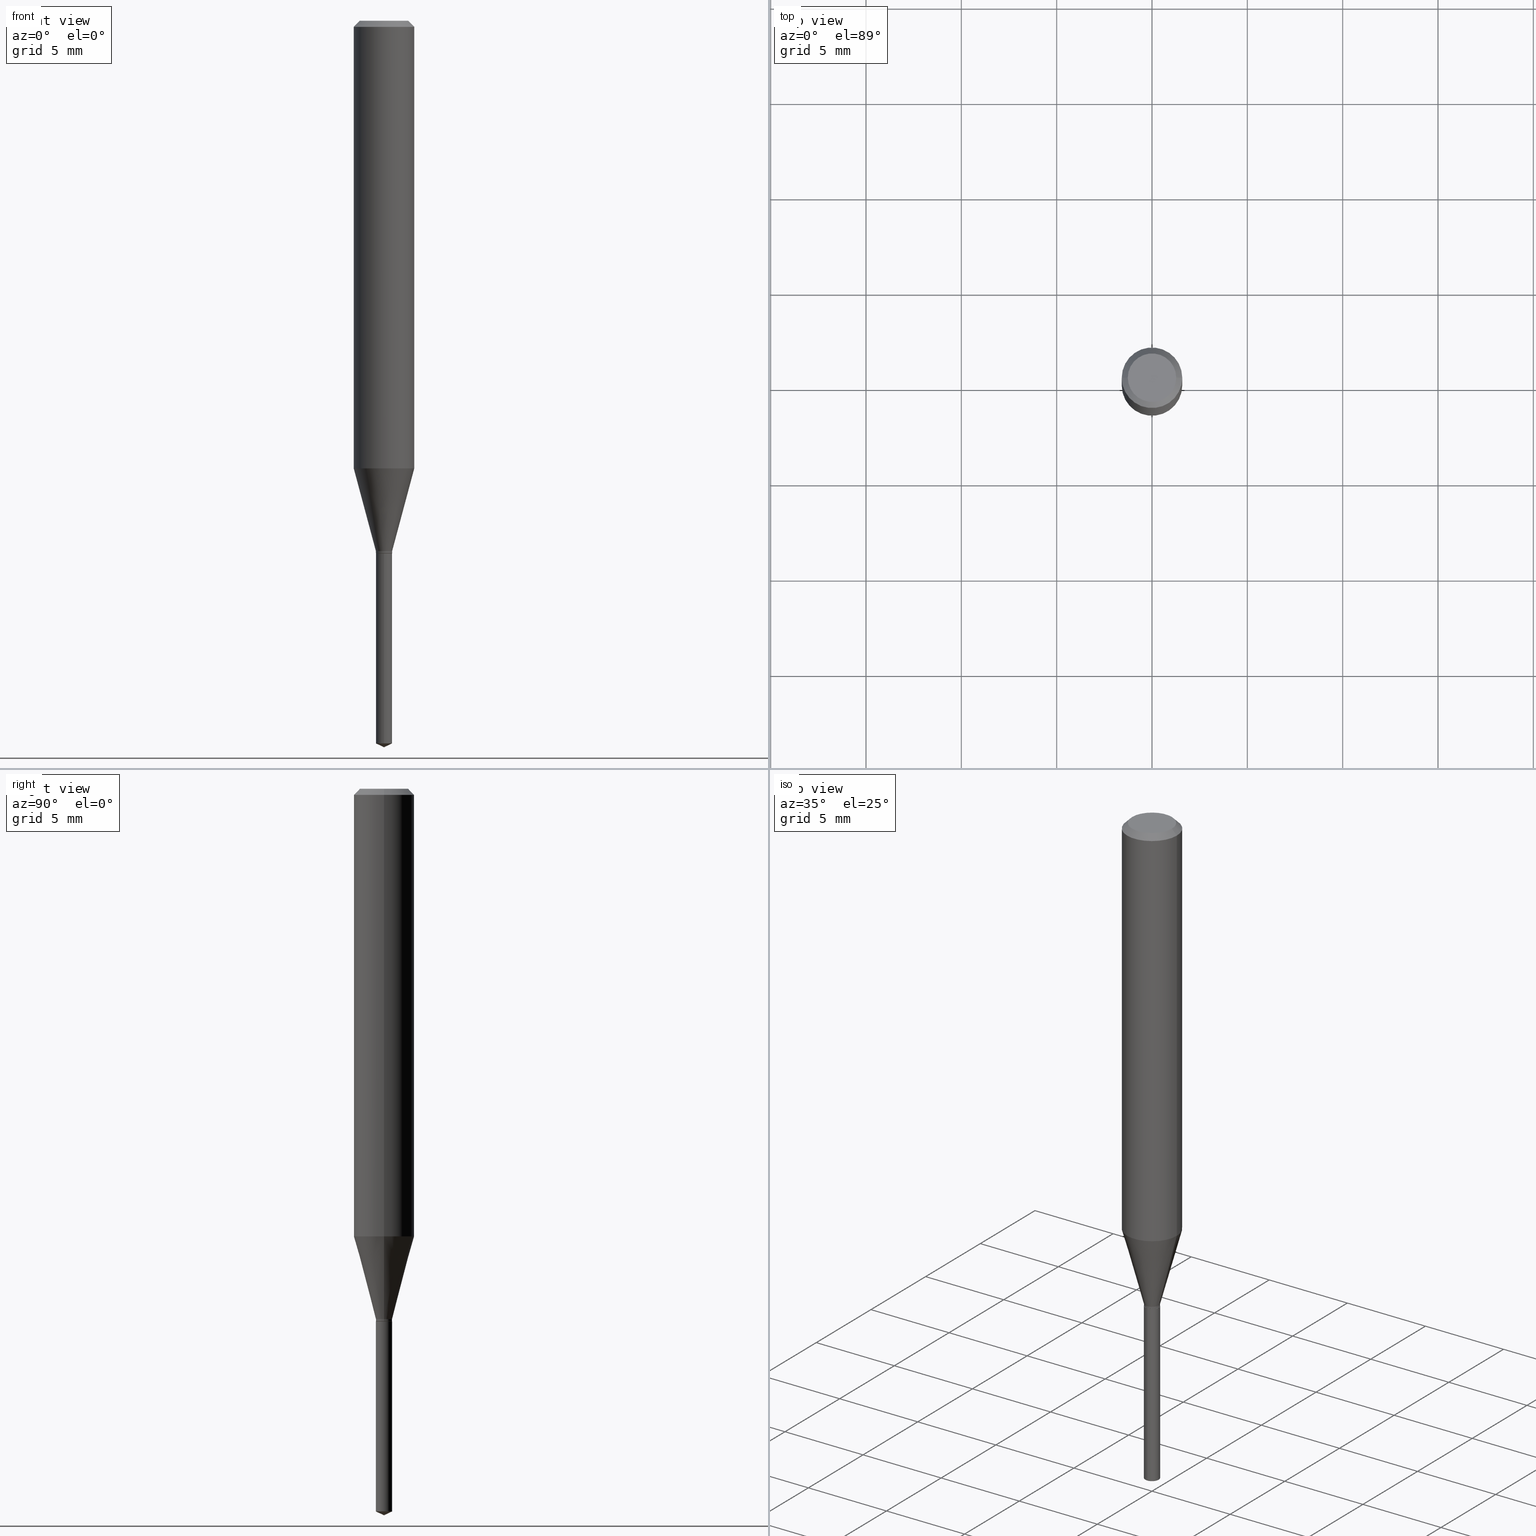
[diagram: canonical four-view strip — front | top / right | iso, engineering-drawing reading convention]
A machine part, canonical four-view strip (front | top / right | iso — engineering-drawing reading convention). The complete STEP part file that produces these views, byte-faithful:
ISO-10303-21;
HEADER;
FILE_DESCRIPTION (( 'STEP AP203' ),
    '1' );
FILE_NAME ('07297.STEP',
    '2024-04-23T20:16:47',
    ( '' ),
    ( '' ),
    'SwSTEP 2.0',
    'SolidWorks 2023',
    '' );
FILE_SCHEMA (( 'CONFIG_CONTROL_DESIGN' ));
ENDSEC;

DATA;
#1 = CARTESIAN_POINT ( 'NONE',  ( -0.01674999999999999406, -3.712011990805825142E-15, -1.099499999999999922 ) ) ;
#2 = CARTESIAN_POINT ( 'NONE',  ( -0.01625000000000000056, -3.722517050992332715E-15, -1.100000000000000089 ) ) ;
#3 = DIRECTION ( 'NONE',  ( 1.000000000000000000, -6.982962677686265922E-15, 4.875957971899673662E-29 ) ) ;
#4 = APPROVAL_PERSON_ORGANIZATION ( #308, #311, #21 ) ;
#5 = PERSON_AND_ORGANIZATION_ROLE ( 'design_owner' ) ;
#6 = CARTESIAN_POINT ( 'NONE',  ( 2.690015686803650369E-29, -3.840629472727460101E-15, -1.100000000000000089 ) ) ;
#7 = EDGE_CURVE ( 'NONE', #457, #127, #364, .T. ) ;
#8 = CALENDAR_DATE ( 2024, 23, 4 ) ;
#9 = CARTESIAN_POINT ( 'NONE',  ( 3.056836007731440977E-31, -4.364351673553961068E-17, -0.01250000000000008223 ) ) ;
#10 = CONICAL_SURFACE ( 'NONE', #142, 0.06250000000000000000, 0.7853981633974452814 ) ;
#11 = ADVANCED_FACE ( 'NONE', ( #202 ), #342, .T. ) ;
#12 = DIRECTION ( 'NONE',  ( 1.000000000000000000, -6.982962677686262766E-15, 0.000000000000000000 ) ) ;
#13 = VERTEX_POINT ( 'NONE', #167 ) ;
#14 = SECURITY_CLASSIFICATION_LEVEL ( 'unclassified' ) ;
#15 = APPROVAL ( #319, 'UNSPECIFIED' ) ;
#16 = LINE ( 'NONE', #163, #181 ) ;
#17 = ORIENTED_EDGE ( 'NONE', *, *, #169, .T. ) ;
#18 = COORDINATED_UNIVERSAL_TIME_OFFSET ( 5, 0, .BEHIND. ) ;
#19 = VERTEX_POINT ( 'NONE', #322 ) ;
#20 = ADVANCED_FACE ( 'NONE', ( #479 ), #135, .T. ) ;
#21 = APPROVAL_ROLE ( '' ) ;
#22 = ORIENTED_EDGE ( 'NONE', *, *, #176, .T. ) ;
#23 = ORIENTED_EDGE ( 'NONE', *, *, #425, .T. ) ;
#24 = ADVANCED_FACE ( 'NONE', ( #223 ), #415, .T. ) ;
#25 = VECTOR ( 'NONE', #148, 39.37007874015748143 ) ;
#26 = ORIENTED_EDGE ( 'NONE', *, *, #7, .F. ) ;
#27 = ORIENTED_EDGE ( 'NONE', *, *, #468, .T. ) ;
#28 = FACE_OUTER_BOUND ( 'NONE', #271, .T. ) ;
#29 = CARTESIAN_POINT ( 'NONE',  ( 3.893286209682126177E-47, -5.558580879666067980E-33, -1.592040838891559689E-18 ) ) ;
#30 = CARTESIAN_POINT ( 'NONE',  ( 0.06250000000000000000, -4.800786840909312308E-16, -0.01250000000000008223 ) ) ;
#31 = CONICAL_SURFACE ( 'NONE', #473, 0.06250000000000000000, 0.7853981633974452814 ) ;
#32 = DIRECTION ( 'NONE',  ( 1.000000000000000000, -6.982962677686266711E-15, 4.876176775795936353E-29 ) ) ;
#33 = AXIS2_PLACEMENT_3D ( 'NONE', #305, #418, #420 ) ;
#34 = EDGE_CURVE ( 'NONE', #422, #250, #481, .T. ) ;
#35 = CARTESIAN_POINT ( 'NONE',  ( 0.000000000000000000, 0.000000000000000000, 0.000000000000000000 ) ) ;
#36 = CARTESIAN_POINT ( 'NONE',  ( 2.677788342772724596E-29, -3.823172066033244277E-15, -1.094999999999999973 ) ) ;
#37 = LINE ( 'NONE', #382, #25 ) ;
#38 = CARTESIAN_POINT ( 'NONE',  ( 3.056836007731440977E-31, -4.364351673553961068E-17, -0.01250000000000008223 ) ) ;
#39 = PERSON_AND_ORGANIZATION ( #440, #490 ) ;
#40 = ADVANCED_FACE ( 'NONE', ( #78 ), #381, .T. ) ;
#41 = AXIS2_PLACEMENT_3D ( 'NONE', #77, #215, #370 ) ;
#42 = VECTOR ( 'NONE', #140, 39.37007874015747433 ) ;
#43 = APPLICATION_PROTOCOL_DEFINITION ( 'international standard', 'config_control_design', 1994, #145 ) ;
#44 = DIRECTION ( 'NONE',  ( -2.445399690415121530E-29, 3.491580316559632610E-15, 1.000000000000000000 ) ) ;
#45 = MANIFOLD_SOLID_BREP ( 'Body-Move/Copy2[1]', #58 ) ;
#46 = CARTESIAN_POINT ( 'NONE',  ( 0.000000000000000000, 0.000000000000000000, 0.000000000000000000 ) ) ;
#47 = DIRECTION ( 'NONE',  ( 2.445468806185136597E-29, -3.491481338843145583E-15, -1.000000000000000000 ) ) ;
#48 = EDGE_CURVE ( 'NONE', #100, #250, #117, .T. ) ;
#49 = FACE_OUTER_BOUND ( 'NONE', #433, .T. ) ;
#50 = VECTOR ( 'NONE', #151, 39.37007874015748143 ) ;
#51 = AXIS2_PLACEMENT_3D ( 'NONE', #46, #423, #79 ) ;
#52 = CARTESIAN_POINT ( 'NONE',  ( 2.260245759912620669E-29, -3.227031917959708248E-15, -0.9242586755537238741 ) ) ;
#53 = ORIENTED_EDGE ( 'NONE', *, *, #355, .T. ) ;
#54 = DIRECTION ( 'NONE',  ( -2.445468806185136877E-29, 3.491481338843145188E-15, 1.000000000000000000 ) ) ;
#55 = EDGE_CURVE ( 'NONE', #307, #291, #324, .T. ) ;
#56 = ORIENTED_EDGE ( 'NONE', *, *, #115, .T. ) ;
#57 = DATE_AND_TIME ( #230, #474 ) ;
#58 = CLOSED_SHELL ( 'NONE', ( #197, #282, #451, #20, #267 ) ) ;
#59 = CC_DESIGN_APPROVAL ( #15, ( #279 ) ) ;
#60 = ORIENTED_EDGE ( 'NONE', *, *, #289, .F. ) ;
#61 = ORIENTED_EDGE ( 'NONE', *, *, #274, .F. ) ;
#62 = DIRECTION ( 'NONE',  ( -2.445399690415121530E-29, 3.491580316559632610E-15, 1.000000000000000000 ) ) ;
#63 = EDGE_CURVE ( 'NONE', #307, #19, #265, .T. ) ;
#64 = EDGE_LOOP ( 'NONE', ( #290, #138, #193, #406 ) ) ;
#65 = DIRECTION ( 'NONE',  ( -2.445399690415121810E-29, 3.491580316559632610E-15, 1.000000000000000000 ) ) ;
#66 = AXIS2_PLACEMENT_3D ( 'NONE', #452, #111, #153 ) ;
#67 = ORIENTED_EDGE ( 'NONE', *, *, #34, .F. ) ;
#68 = DIRECTION ( 'NONE',  ( -2.445468806185136597E-29, 3.491481338843145583E-15, 1.000000000000000000 ) ) ;
#69 = LINE ( 'NONE', #302, #234 ) ;
#70 = LINE ( 'NONE', #331, #42 ) ;
#71 = CYLINDRICAL_SURFACE ( 'NONE', #461, 0.01674999999999999059 ) ;
#72 = EDGE_CURVE ( 'NONE', #250, #422, #224, .T. ) ;
#73 = CIRCLE ( 'NONE', #351, 0.01674999999999999059 ) ;
#74 = CONICAL_SURFACE ( 'NONE', #482, 0.01625000000000000056, 0.7853981633974035370 ) ;
#75 = CARTESIAN_POINT ( 'NONE',  ( -0.06250000000000000000, 3.927916506198521080E-16, -0.01250000000000008223 ) ) ;
#76 =( NAMED_UNIT ( * ) PLANE_ANGLE_UNIT ( ) SI_UNIT ( $, .RADIAN. ) );
#77 = CARTESIAN_POINT ( 'NONE',  ( 2.688792952400557567E-29, -3.838883732058038598E-15, -1.099499999999999922 ) ) ;
#78 = FACE_OUTER_BOUND ( 'NONE', #102, .T. ) ;
#79 = DIRECTION ( 'NONE',  ( 1.000000000000000000, 0.000000000000000000, 0.000000000000000000 ) ) ;
#80 = APPLICATION_CONTEXT ( 'configuration controlled 3d designs of mechanical parts and assemblies' ) ;
#81 = CARTESIAN_POINT ( 'NONE',  ( 2.690015686803650369E-29, -3.840629472727460101E-15, -1.100000000000000089 ) ) ;
#82 = CLOSED_SHELL ( 'NONE', ( #362, #212, #40, #24, #184, #485, #11, #371, #245, #146, #205, #217 ) ) ;
#83 = ORIENTED_EDGE ( 'NONE', *, *, #459, .F. ) ;
#84 = APPROVAL_PERSON_ORGANIZATION ( #349, #15, #434 ) ;
#85 = CALENDAR_DATE ( 2024, 23, 4 ) ;
#86 = ORIENTED_EDGE ( 'NONE', *, *, #459, .T. ) ;
#87 = COORDINATED_UNIVERSAL_TIME_OFFSET ( 5, 0, .BEHIND. ) ;
#88 = DIRECTION ( 'NONE',  ( -6.982962677686267499E-15, -1.000000000000000000, 3.520397390770395889E-15 ) ) ;
#89 = CARTESIAN_POINT ( 'NONE',  ( 0.01674999999999999059, -3.940136690884488960E-15, -1.094999999999999973 ) ) ;
#90 = LOCAL_TIME ( 16, 16, 47.00000000000000000, #269 ) ;
#91 = FACE_OUTER_BOUND ( 'NONE', #325, .T. ) ;
#92 = ORIENTED_EDGE ( 'NONE', *, *, #350, .F. ) ;
#93 = EDGE_CURVE ( 'NONE', #321, #13, #73, .T. ) ;
#94 = LINE ( 'NONE', #110, #247 ) ;
#95 = DESIGN_CONTEXT ( 'detailed design', #145, 'design' ) ;
#96 = ORIENTED_EDGE ( 'NONE', *, *, #232, .T. ) ;
#97 = DATE_AND_TIME ( #233, #270 ) ;
#98 = DIRECTION ( 'NONE',  ( 1.000000000000000000, -6.982962677686258033E-15, 0.000000000000000000 ) ) ;
#99 = VECTOR ( 'NONE', #104, 39.37007874015748143 ) ;
#100 = VERTEX_POINT ( 'NONE', #219 ) ;
#101 = DIMENSIONAL_EXPONENTS ( 1.000000000000000000, 0.000000000000000000, 0.000000000000000000, 0.000000000000000000, 0.000000000000000000, 0.000000000000000000, 0.000000000000000000 ) ;
#102 = EDGE_LOOP ( 'NONE', ( #480, #208, #67, #241 ) ) ;
#103 = ORIENTED_EDGE ( 'NONE', *, *, #416, .T. ) ;
#104 = DIRECTION ( 'NONE',  ( 0.7071067811865453523, -7.319954787623248157E-15, -0.7071067811865496822 ) ) ;
#105 = ORIENTED_EDGE ( 'NONE', *, *, #63, .T. ) ;
#106 = CONICAL_SURFACE ( 'NONE', #407, 84.42940631927572781, 1.134464013796322224 ) ;
#107 = DIRECTION ( 'NONE',  ( -2.445468806185136597E-29, 3.491481338843145583E-15, 1.000000000000000000 ) ) ;
#108 = CARTESIAN_POINT ( 'NONE',  ( 3.668252923656895710E-29, -5.237152723863177100E-15, -1.500000000000000222 ) ) ;
#109 = DIRECTION ( 'NONE',  ( 1.000000000000000000, -6.982962677686264344E-15, 0.000000000000000000 ) ) ;
#110 = CARTESIAN_POINT ( 'NONE',  ( 0.06250000000000005551, -4.364351673553921131E-16, 3.047610484872463023E-30 ) ) ;
#111 = DIRECTION ( 'NONE',  ( -2.445399690415121530E-29, 3.491580316559632610E-15, 1.000000000000000000 ) ) ;
#112 = VECTOR ( 'NONE', #186, 39.37007874015748143 ) ;
#113 = CIRCLE ( 'NONE', #287, 0.06250000000000012490 ) ;
#114 = DIRECTION ( 'NONE',  ( -6.982962677686266711E-15, -1.000000000000000000, 0.000000000000000000 ) ) ;
#115 = EDGE_CURVE ( 'NONE', #100, #439, #391, .T. ) ;
#116 = APPROVAL_STATUS ( 'not_yet_approved' ) ;
#117 = LINE ( 'NONE', #75, #50 ) ;
#118 = ADVANCED_BREP_SHAPE_REPRESENTATION ( '07297', ( #45, #380, #51 ), #136 ) ;
#119 = MECHANICAL_CONTEXT ( 'NONE', #80, 'mechanical' ) ;
#120 = DIRECTION ( 'NONE',  ( 1.000000000000000000, -6.982962677686258033E-15, 0.000000000000000000 ) ) ;
#121 = VERTEX_POINT ( 'NONE', #419 ) ;
#122 = PERSON_AND_ORGANIZATION ( #440, #490 ) ;
#123 = AXIS2_PLACEMENT_3D ( 'NONE', #173, #401, #360 ) ;
#124 = DIRECTION ( 'NONE',  ( -2.445468806185136597E-29, 3.491481338843145583E-15, 1.000000000000000000 ) ) ;
#125 = PERSON_AND_ORGANIZATION_ROLE ( 'creator' ) ;
#126 = CARTESIAN_POINT ( 'NONE',  ( 2.690015686803650369E-29, -3.840629472727460101E-15, -1.100000000000000089 ) ) ;
#127 = VERTEX_POINT ( 'NONE', #2 ) ;
#128 = EDGE_CURVE ( 'NONE', #121, #19, #315, .T. ) ;
#129 = VECTOR ( 'NONE', #54, 39.37007874015748143 ) ;
#130 = ORIENTED_EDGE ( 'NONE', *, *, #410, .T. ) ;
#131 = DIRECTION ( 'NONE',  ( 1.000000000000000000, -6.982962677686258033E-15, 0.000000000000000000 ) ) ;
#132 = EDGE_LOOP ( 'NONE', ( #92, #22, #475, #437 ) ) ;
#133 = PRODUCT_DEFINITION_SHAPE ( 'NONE', 'NONE',  #340 ) ;
#134 = EDGE_CURVE ( 'NONE', #477, #321, #261, .T. ) ;
#135 = CYLINDRICAL_SURFACE ( 'NONE', #209, 0.01675000000000000100 ) ;
#136 =( GEOMETRIC_REPRESENTATION_CONTEXT ( 3 ) GLOBAL_UNCERTAINTY_ASSIGNED_CONTEXT ( ( #469 ) ) GLOBAL_UNIT_ASSIGNED_CONTEXT ( ( #339, #76, #228 ) ) REPRESENTATION_CONTEXT ( 'NONE', 'WORKASPACE' ) );
#137 = ORIENTED_EDGE ( 'NONE', *, *, #48, .F. ) ;
#138 = ORIENTED_EDGE ( 'NONE', *, *, #289, .T. ) ;
#139 = VERTEX_POINT ( 'NONE', #1 ) ;
#140 = DIRECTION ( 'NONE',  ( 0.2588190451025213501, 1.565188264969621968E-15, 0.9659258262890682012 ) ) ;
#141 = CARTESIAN_POINT ( 'NONE',  ( 3.649075393871284375E-29, -5.209990076120007424E-15, -1.492189346725903976 ) ) ;
#142 = AXIS2_PLACEMENT_3D ( 'NONE', #386, #47, #198 ) ;
#143 = DIRECTION ( 'NONE',  ( -2.445468806185136877E-29, 3.491481338843145188E-15, 1.000000000000000000 ) ) ;
#144 = FACE_OUTER_BOUND ( 'NONE', #277, .T. ) ;
#145 = APPLICATION_CONTEXT ( 'configuration controlled 3d designs of mechanical parts and assemblies' ) ;
#146 = ADVANCED_FACE ( 'NONE', ( #258 ), #294, .F. ) ;
#147 = DIRECTION ( 'NONE',  ( 1.000000000000000000, -6.982962677686266711E-15, 0.000000000000000000 ) ) ;
#148 = DIRECTION ( 'NONE',  ( 0.7071067811865158204, -2.468850131081924950E-15, 0.7071067811865792141 ) ) ;
#149 = CIRCLE ( 'NONE', #188, 0.06250000000000012490 ) ;
#150 = PRODUCT_DEFINITION_FORMATION_WITH_SPECIFIED_SOURCE ( 'ANY', '', #243, .NOT_KNOWN. ) ;
#151 = DIRECTION ( 'NONE',  ( -0.7071067811865453523, 2.468850131082234184E-15, -0.7071067811865496822 ) ) ;
#152 = DIRECTION ( 'NONE',  ( -2.445399690415121530E-29, 3.491580316559632610E-15, 1.000000000000000000 ) ) ;
#153 = DIRECTION ( 'NONE',  ( -6.982962677686266711E-15, -1.000000000000000000, 0.000000000000000000 ) ) ;
#154 = DATE_AND_TIME ( #8, #309 ) ;
#155 = ORIENTED_EDGE ( 'NONE', *, *, #157, .T. ) ;
#156 = DATE_TIME_ROLE ( 'creation_date' ) ;
#157 = EDGE_CURVE ( 'NONE', #139, #13, #69, .T. ) ;
#158 = PLANE ( 'NONE',  #383 ) ;
#159 = PERSON_AND_ORGANIZATION_ROLE ( 'design_supplier' ) ;
#160 = FACE_OUTER_BOUND ( 'NONE', #354, .T. ) ;
#161 = DIRECTION ( 'NONE',  ( -1.000000000000000000, 6.982962677686266711E-15, 0.000000000000000000 ) ) ;
#162 = CC_DESIGN_PERSON_AND_ORGANIZATION_ASSIGNMENT ( #39, #187, ( #340 ) ) ;
#163 = CARTESIAN_POINT ( 'NONE',  ( -0.01625000000000000056, -3.725166278166443916E-15, -1.100000000000000089 ) ) ;
#164 = AXIS2_PLACEMENT_3D ( 'NONE', #6, #456, #120 ) ;
#165 = CARTESIAN_POINT ( 'NONE',  ( 0.000000000000000000, 0.000000000000000000, 0.000000000000000000 ) ) ;
#166 = EDGE_LOOP ( 'NONE', ( #408, #27, #318, #402 ) ) ;
#167 = CARTESIAN_POINT ( 'NONE',  ( -0.01674999999999999059, -3.712011990805825142E-15, -1.094999999999999973 ) ) ;
#168 = ORIENTED_EDGE ( 'NONE', *, *, #387, .F. ) ;
#169 = EDGE_CURVE ( 'NONE', #477, #139, #180, .T. ) ;
#170 = VERTEX_POINT ( 'NONE', #297 ) ;
#171 = VECTOR ( 'NONE', #143, 39.37007874015748143 ) ;
#172 = AXIS2_PLACEMENT_3D ( 'NONE', #389, #353, #12 ) ;
#173 = CARTESIAN_POINT ( 'NONE',  ( 2.677788342772724596E-29, -3.823172066033244277E-15, -1.094999999999999973 ) ) ;
#174 = DIRECTION ( 'NONE',  ( 6.439704144417047708E-15, 0.9063077870366548217, 0.4226182617406890052 ) ) ;
#175 = CARTESIAN_POINT ( 'NONE',  ( 2.690015686803650369E-29, -3.840629472727460101E-15, -1.100000000000000089 ) ) ;
#176 = EDGE_CURVE ( 'NONE', #288, #170, #149, .T. ) ;
#177 = CARTESIAN_POINT ( 'NONE',  ( 3.668099535622682715E-29, -5.237370474839449507E-15, -1.500000000000000222 ) ) ;
#178 = DIRECTION ( 'NONE',  ( -2.445468806185136597E-29, 3.491481338843145583E-15, 1.000000000000000000 ) ) ;
#179 = AXIS2_PLACEMENT_3D ( 'NONE', #238, #344, #304 ) ;
#180 = CIRCLE ( 'NONE', #41, 0.01674999999999999406 ) ;
#181 = VECTOR ( 'NONE', #357, 39.37007874015748143 ) ;
#182 = DIRECTION ( 'NONE',  ( -2.445399690415121530E-29, 3.491580316559632610E-15, 1.000000000000000000 ) ) ;
#183 = LENGTH_MEASURE_WITH_UNIT ( LENGTH_MEASURE( 0.02539999999999999897 ), #385 );
#184 = ADVANCED_FACE ( 'NONE', ( #412 ), #71, .T. ) ;
#185 = DIRECTION ( 'NONE',  ( -2.445468806185136597E-29, 3.491481338843145583E-15, 1.000000000000000000 ) ) ;
#186 = DIRECTION ( 'NONE',  ( -2.445399690415121810E-29, 3.491580316559632610E-15, 1.000000000000000000 ) ) ;
#187 = PERSON_AND_ORGANIZATION_ROLE ( 'creator' ) ;
#188 = AXIS2_PLACEMENT_3D ( 'NONE', #450, #378, #109 ) ;
#189 = VECTOR ( 'NONE', #174, 39.37007874015748143 ) ;
#190 = DIRECTION ( 'NONE',  ( -6.982962677686266711E-15, -1.000000000000000000, 0.000000000000000000 ) ) ;
#191 = CARTESIAN_POINT ( 'NONE',  ( 0.01625000000000000056, -3.954102616239861778E-15, -1.100000000000000089 ) ) ;
#192 = CARTESIAN_POINT ( 'NONE',  ( -0.06250000000000000000, -1.191248507497560105E-15, -0.01250000000000008223 ) ) ;
#193 = ORIENTED_EDGE ( 'NONE', *, *, #134, .T. ) ;
#194 = FACE_OUTER_BOUND ( 'NONE', #213, .T. ) ;
#195 = AXIS2_PLACEMENT_3D ( 'NONE', #328, #68, #369 ) ;
#196 = ORIENTED_EDGE ( 'NONE', *, *, #63, .F. ) ;
#197 = ADVANCED_FACE ( 'NONE', ( #144 ), #298, .T. ) ;
#198 = DIRECTION ( 'NONE',  ( -1.000000000000000000, 6.982962677686266711E-15, 0.000000000000000000 ) ) ;
#199 = DATE_AND_TIME ( #396, #431 ) ;
#200 = CC_DESIGN_PERSON_AND_ORGANIZATION_ASSIGNMENT ( #398, #314, ( #279 ) ) ;
#201 = DIRECTION ( 'NONE',  ( 1.000000000000000000, -6.982962677686264344E-15, 0.000000000000000000 ) ) ;
#202 = FACE_OUTER_BOUND ( 'NONE', #166, .T. ) ;
#203 = CIRCLE ( 'NONE', #33, 0.01674999999999999059 ) ;
#204 = EDGE_LOOP ( 'NONE', ( #254, #103, #426, #403 ) ) ;
#205 = ADVANCED_FACE ( 'NONE', ( #91 ), #227, .F. ) ;
#206 = EDGE_LOOP ( 'NONE', ( #17, #155, #460, #394 ) ) ;
#207 = DIRECTION ( 'NONE',  ( -6.982962677686266711E-15, -1.000000000000000000, 0.000000000000000000 ) ) ;
#208 = ORIENTED_EDGE ( 'NONE', *, *, #350, .T. ) ;
#209 = AXIS2_PLACEMENT_3D ( 'NONE', #286, #62, #207 ) ;
#210 = CONICAL_SURFACE ( 'NONE', #218, 84.42940631927572781, 1.134464013796322224 ) ;
#211 = LINE ( 'NONE', #449, #366 ) ;
#212 = ADVANCED_FACE ( 'NONE', ( #160 ), #31, .T. ) ;
#213 = EDGE_LOOP ( 'NONE', ( #251, #23, #448 ) ) ;
#214 = DIRECTION ( 'NONE',  ( -2.445468806185136597E-29, 3.491481338843145583E-15, 1.000000000000000000 ) ) ;
#215 = DIRECTION ( 'NONE',  ( -2.445468806185136597E-29, 3.491481338843145583E-15, 1.000000000000000000 ) ) ;
#216 = CARTESIAN_POINT ( 'NONE',  ( 0.000000000000000000, 0.000000000000000000, 0.000000000000000000 ) ) ;
#217 = ADVANCED_FACE ( 'NONE', ( #306 ), #358, .T. ) ;
#218 = AXIS2_PLACEMENT_3D ( 'NONE', #337, #152, #376 ) ;
#219 = CARTESIAN_POINT ( 'NONE',  ( -0.04999999999999999584, 3.709698922520826725E-16, -1.592040838894077649E-18 ) ) ;
#220 = CARTESIAN_POINT ( 'NONE',  ( 3.649075393871284375E-29, -5.209990076120007424E-15, -1.492189346725903976 ) ) ;
#221 = DIRECTION ( 'NONE',  ( -2.445468806185136597E-29, 3.491481338843145583E-15, 1.000000000000000000 ) ) ;
#222 = COORDINATED_UNIVERSAL_TIME_OFFSET ( 5, 0, .BEHIND. ) ;
#223 = FACE_OUTER_BOUND ( 'NONE', #204, .T. ) ;
#224 = CIRCLE ( 'NONE', #373, 0.06250000000000000000 ) ;
#225 = EDGE_CURVE ( 'NONE', #435, #307, #268, .T. ) ;
#226 = AXIS2_PLACEMENT_3D ( 'NONE', #165, #476, #409 ) ;
#227 = PLANE ( 'NONE',  #179 ) ;
#228 =( NAMED_UNIT ( * ) SI_UNIT ( $, .STERADIAN. ) SOLID_ANGLE_UNIT ( ) );
#229 = ORIENTED_EDGE ( 'NONE', *, *, #430, .F. ) ;
#230 = CALENDAR_DATE ( 2024, 23, 4 ) ;
#231 = CARTESIAN_POINT ( 'NONE',  ( -0.06250000000000012490, -2.782942708109644843E-15, -0.9242586755537238741 ) ) ;
#232 = EDGE_CURVE ( 'NONE', #19, #121, #447, .T. ) ;
#233 = CALENDAR_DATE ( 2024, 23, 4 ) ;
#234 = VECTOR ( 'NONE', #417, 39.37007874015748143 ) ;
#235 = DIRECTION ( 'NONE',  ( 2.445468806185136597E-29, -3.491481338843145583E-15, -1.000000000000000000 ) ) ;
#236 = CIRCLE ( 'NONE', #424, 0.01675000000000000100 ) ;
#237 = PRODUCT_RELATED_PRODUCT_CATEGORY ( 'detail', '', ( #243 ) ) ;
#238 = CARTESIAN_POINT ( 'NONE',  ( 2.690015686803650369E-29, -3.840629472727460101E-15, -1.100000000000000089 ) ) ;
#239 = ORIENTED_EDGE ( 'NONE', *, *, #48, .T. ) ;
#240 = CARTESIAN_POINT ( 'NONE',  ( -0.06250000000000005551, 4.440892098500630106E-16, -3.074334431409318916E-30 ) ) ;
#241 = ORIENTED_EDGE ( 'NONE', *, *, #334, .F. ) ;
#242 = ORIENTED_EDGE ( 'NONE', *, *, #232, .F. ) ;
#243 = PRODUCT ( '07297', '07297', '', ( #119 ) ) ;
#244 = APPROVAL_DATE_TIME ( #97, #15 ) ;
#245 = ADVANCED_FACE ( 'NONE', ( #49 ), #10, .T. ) ;
#246 = EDGE_LOOP ( 'NONE', ( #96, #484 ) ) ;
#247 = VECTOR ( 'NONE', #395, 39.37007874015748143 ) ;
#248 = CIRCLE ( 'NONE', #195, 0.01625000000000000056 ) ;
#249 = ORIENTED_EDGE ( 'NONE', *, *, #128, .F. ) ;
#250 = VERTEX_POINT ( 'NONE', #192 ) ;
#251 = ORIENTED_EDGE ( 'NONE', *, *, #225, .F. ) ;
#252 = APPROVAL ( #116, 'UNSPECIFIED' ) ;
#253 = LINE ( 'NONE', #404, #352 ) ;
#254 = ORIENTED_EDGE ( 'NONE', *, *, #93, .T. ) ;
#255 = EDGE_LOOP ( 'NONE', ( #368, #86, #105, #249 ) ) ;
#256 = VECTOR ( 'NONE', #421, 39.37007874015748143 ) ;
#257 = AXIS2_PLACEMENT_3D ( 'NONE', #81, #44, #190 ) ;
#258 = FACE_OUTER_BOUND ( 'NONE', #397, .T. ) ;
#259 = DIRECTION ( 'NONE',  ( -6.982962677686266711E-15, -1.000000000000000000, 0.000000000000000000 ) ) ;
#260 = DIRECTION ( 'NONE',  ( -2.445399690415121530E-29, 3.491580316559632610E-15, 1.000000000000000000 ) ) ;
#261 = LINE ( 'NONE', #486, #171 ) ;
#262 = AXIS2_PLACEMENT_3D ( 'NONE', #38, #221, #336 ) ;
#263 = DIRECTION ( 'NONE',  ( 2.438088387897960049E-29, -3.491481338843145188E-15, -1.000000000000000000 ) ) ;
#264 = APPROVAL_ROLE ( '' ) ;
#265 = LINE ( 'NONE', #332, #112 ) ;
#266 = PERSON_AND_ORGANIZATION ( #440, #490 ) ;
#267 = ADVANCED_FACE ( 'NONE', ( #393 ), #158, .F. ) ;
#268 = LINE ( 'NONE', #467, #256 ) ;
#269 = COORDINATED_UNIVERSAL_TIME_OFFSET ( 5, 0, .BEHIND. ) ;
#270 = LOCAL_TIME ( 16, 16, 47.00000000000000000, #18 ) ;
#271 = EDGE_LOOP ( 'NONE', ( #346, #53, #327, #284 ) ) ;
#272 = PERSON_AND_ORGANIZATION ( #440, #490 ) ;
#273 = DIRECTION ( 'NONE',  ( 1.000000000000000000, -6.982962677686265922E-15, 4.875957971899673662E-29 ) ) ;
#274 = EDGE_CURVE ( 'NONE', #439, #100, #463, .T. ) ;
#275 = DATE_TIME_ROLE ( 'classification_date' ) ;
#276 = CARTESIAN_POINT ( 'NONE',  ( 3.893286209682126177E-47, -5.558580879666067980E-33, -1.592040838891559689E-18 ) ) ;
#277 = EDGE_LOOP ( 'NONE', ( #361, #130, #242, #196 ) ) ;
#278 = PERSON_AND_ORGANIZATION ( #440, #490 ) ;
#279 = SECURITY_CLASSIFICATION ( '', '', #14 ) ;
#280 = ORIENTED_EDGE ( 'NONE', *, *, #430, .T. ) ;
#281 = SHAPE_DEFINITION_REPRESENTATION ( #133, #118 ) ;
#282 = ADVANCED_FACE ( 'NONE', ( #194 ), #106, .T. ) ;
#283 = LINE ( 'NONE', #441, #99 ) ;
#284 = ORIENTED_EDGE ( 'NONE', *, *, #443, .F. ) ;
#285 = CC_DESIGN_PERSON_AND_ORGANIZATION_ASSIGNMENT ( #278, #159, ( #150 ) ) ;
#286 = CARTESIAN_POINT ( 'NONE',  ( 2.690015686803650369E-29, -3.840629472727460101E-15, -1.100000000000000089 ) ) ;
#287 = AXIS2_PLACEMENT_3D ( 'NONE', #52, #320, #201 ) ;
#288 = VERTEX_POINT ( 'NONE', #231 ) ;
#289 = EDGE_CURVE ( 'NONE', #139, #477, #392, .T. ) ;
#290 = ORIENTED_EDGE ( 'NONE', *, *, #157, .F. ) ;
#291 = VERTEX_POINT ( 'NONE', #312 ) ;
#292 = ORIENTED_EDGE ( 'NONE', *, *, #72, .T. ) ;
#293 = LINE ( 'NONE', #108, #189 ) ;
#294 = PLANE ( 'NONE',  #405 ) ;
#295 = AXIS2_PLACEMENT_3D ( 'NONE', #446, #375, #300 ) ;
#296 = CARTESIAN_POINT ( 'NONE',  ( 0.04999999999999999584, -4.077247707424184212E-16, -1.592040838888913461E-18 ) ) ;
#297 = CARTESIAN_POINT ( 'NONE',  ( 0.06250000000000012490, -3.663467085315101101E-15, -0.9242586755537238741 ) ) ;
#298 = CYLINDRICAL_SURFACE ( 'NONE', #66, 0.01675000000000000100 ) ;
#299 = DIRECTION ( 'NONE',  ( -6.982962677686266711E-15, -1.000000000000000000, 0.000000000000000000 ) ) ;
#300 = DIRECTION ( 'NONE',  ( 1.000000000000000000, -6.982962677686267499E-15, 4.876176775795936353E-29 ) ) ;
#301 = CC_DESIGN_APPROVAL ( #252, ( #340 ) ) ;
#302 = CARTESIAN_POINT ( 'NONE',  ( -0.01674999999999999059, 1.190159082398167143E-16, -8.239216276176962182E-31 ) ) ;
#303 = DATE_AND_TIME ( #85, #90 ) ;
#304 = DIRECTION ( 'NONE',  ( 1.000000000000000000, -6.982962677686265922E-15, 4.876176775795935793E-29 ) ) ;
#305 = CARTESIAN_POINT ( 'NONE',  ( 2.677788342772724596E-29, -3.823172066033244277E-15, -1.094999999999999973 ) ) ;
#306 = FACE_OUTER_BOUND ( 'NONE', #348, .T. ) ;
#307 = VERTEX_POINT ( 'NONE', #429 ) ;
#308 = PERSON_AND_ORGANIZATION ( #440, #490 ) ;
#309 = LOCAL_TIME ( 16, 16, 47.00000000000000000, #222 ) ;
#310 = DIRECTION ( 'NONE',  ( 2.445399690415121250E-29, -3.491580316559632610E-15, -1.000000000000000000 ) ) ;
#311 = APPROVAL ( #466, 'UNSPECIFIED' ) ;
#312 = CARTESIAN_POINT ( 'NONE',  ( 1.190159082398532484E-16, 0.01674999999999478989, -1.492189346725903976 ) ) ;
#313 = ORIENTED_EDGE ( 'NONE', *, *, #225, .T. ) ;
#314 = PERSON_AND_ORGANIZATION_ROLE ( 'classification_officer' ) ;
#315 = CIRCLE ( 'NONE', #399, 0.01675000000000000100 ) ;
#316 = CYLINDRICAL_SURFACE ( 'NONE', #226, 0.06250000000000005551 ) ;
#317 = AXIS2_PLACEMENT_3D ( 'NONE', #35, #462, #413 ) ;
#318 = ORIENTED_EDGE ( 'NONE', *, *, #377, .T. ) ;
#319 = APPROVAL_STATUS ( 'not_yet_approved' ) ;
#320 = DIRECTION ( 'NONE',  ( -2.445468806185136597E-29, 3.491481338843145583E-15, 1.000000000000000000 ) ) ;
#321 = VERTEX_POINT ( 'NONE', #89 ) ;
#322 = CARTESIAN_POINT ( 'NONE',  ( -1.169646248512180594E-16, -0.01675000000000384168, -1.100000000000000089 ) ) ;
#323 = EDGE_CURVE ( 'NONE', #170, #288, #113, .T. ) ;
#324 = CIRCLE ( 'NONE', #488, 0.01675000000000000100 ) ;
#325 = EDGE_LOOP ( 'NONE', ( #26, #229 ) ) ;
#326 = APPROVAL_PERSON_ORGANIZATION ( #122, #252, #264 ) ;
#327 = ORIENTED_EDGE ( 'NONE', *, *, #169, .F. ) ;
#328 = CARTESIAN_POINT ( 'NONE',  ( 2.690015686803650369E-29, -3.840629472727460101E-15, -1.100000000000000089 ) ) ;
#329 = DIRECTION ( 'NONE',  ( -1.000000000000000000, 6.982962677686265922E-15, -4.876176775795935793E-29 ) ) ;
#330 = ORIENTED_EDGE ( 'NONE', *, *, #387, .T. ) ;
#331 = CARTESIAN_POINT ( 'NONE',  ( 0.01674999999999999059, -3.940136690884488960E-15, -1.094999999999999973 ) ) ;
#332 = CARTESIAN_POINT ( 'NONE',  ( -1.169646248512180594E-16, -0.01675000000000384168, -1.100000000000000089 ) ) ;
#333 = AXIS2_PLACEMENT_3D ( 'NONE', #483, #365, #98 ) ;
#334 = EDGE_CURVE ( 'NONE', #170, #422, #94, .T. ) ;
#335 = CC_DESIGN_SECURITY_CLASSIFICATION ( #279, ( #150 ) ) ;
#336 = DIRECTION ( 'NONE',  ( 1.000000000000000000, -6.982962677686266711E-15, 0.000000000000000000 ) ) ;
#337 = CARTESIAN_POINT ( 'NONE',  ( -9.260740279983036507E-28, 1.322265303911854087E-13, 37.87007874015748143 ) ) ;
#338 = CARTESIAN_POINT ( 'NONE',  ( 3.056836007731440977E-31, -4.364351673553961068E-17, -0.01250000000000008223 ) ) ;
#339 =( CONVERSION_BASED_UNIT ( 'INCH', #183 ) LENGTH_UNIT ( ) NAMED_UNIT ( #101 ) );
#340 = PRODUCT_DEFINITION ( 'UNKNOWN', '', #150, #95 ) ;
#341 = DIRECTION ( 'NONE',  ( -2.445468806185136597E-29, 3.491481338843145583E-15, 1.000000000000000000 ) ) ;
#342 = CONICAL_SURFACE ( 'NONE', #123, 0.01674999999999999059, 0.2617993877991500740 ) ;
#343 = CC_DESIGN_APPROVAL ( #311, ( #150 ) ) ;
#344 = DIRECTION ( 'NONE',  ( -2.438088387897960049E-29, 3.491481338843145188E-15, 1.000000000000000000 ) ) ;
#345 = CYLINDRICAL_SURFACE ( 'NONE', #317, 0.01674999999999999059 ) ;
#346 = ORIENTED_EDGE ( 'NONE', *, *, #7, .T. ) ;
#347 = APPLICATION_PROTOCOL_DEFINITION ( 'international standard', 'config_control_design', 1994, #80 ) ;
#348 = EDGE_LOOP ( 'NONE', ( #470, #280, #388, #60 ) ) ;
#349 = PERSON_AND_ORGANIZATION ( #440, #490 ) ;
#350 = EDGE_CURVE ( 'NONE', #288, #250, #432, .T. ) ;
#351 = AXIS2_PLACEMENT_3D ( 'NONE', #454, #178, #414 ) ;
#352 = VECTOR ( 'NONE', #65, 39.37007874015748143 ) ;
#353 = DIRECTION ( 'NONE',  ( -2.445468806185136597E-29, 3.491481338843145583E-15, 1.000000000000000000 ) ) ;
#354 = EDGE_LOOP ( 'NONE', ( #61, #330, #384, #137 ) ) ;
#355 = EDGE_CURVE ( 'NONE', #127, #139, #16, .T. ) ;
#356 = AXIS2_PLACEMENT_3D ( 'NONE', #29, #107, #3 ) ;
#357 = DIRECTION ( 'NONE',  ( -0.7071067811865158204, 7.493145998870240564E-15, 0.7071067811865792141 ) ) ;
#358 = CONICAL_SURFACE ( 'NONE', #164, 0.01625000000000000056, 0.7853981633974035370 ) ;
#359 = ORIENTED_EDGE ( 'NONE', *, *, #425, .F. ) ;
#360 = DIRECTION ( 'NONE',  ( 1.000000000000000000, -6.982962677686264344E-15, 0.000000000000000000 ) ) ;
#361 = ORIENTED_EDGE ( 'NONE', *, *, #55, .T. ) ;
#362 = ADVANCED_FACE ( 'NONE', ( #28 ), #74, .T. ) ;
#363 = EDGE_LOOP ( 'NONE', ( #359, #313, #83 ) ) ;
#364 = CIRCLE ( 'NONE', #333, 0.01625000000000000056 ) ;
#365 = DIRECTION ( 'NONE',  ( -2.445468806185136597E-29, 3.491481338843145583E-15, 1.000000000000000000 ) ) ;
#366 = VECTOR ( 'NONE', #367, 39.37007874015747433 ) ;
#367 = DIRECTION ( 'NONE',  ( -0.2588190451025213501, 5.211531920934551042E-15, 0.9659258262890682012 ) ) ;
#368 = ORIENTED_EDGE ( 'NONE', *, *, #410, .F. ) ;
#369 = DIRECTION ( 'NONE',  ( 1.000000000000000000, -6.982962677686258033E-15, 0.000000000000000000 ) ) ;
#370 = DIRECTION ( 'NONE',  ( 1.000000000000000000, -6.982962677686262766E-15, 0.000000000000000000 ) ) ;
#371 = ADVANCED_FACE ( 'NONE', ( #444 ), #316, .T. ) ;
#372 = DIRECTION ( 'NONE',  ( -2.445468806185136597E-29, 3.491481338843145583E-15, 1.000000000000000000 ) ) ;
#373 = AXIS2_PLACEMENT_3D ( 'NONE', #338, #341, #147 ) ;
#374 = CARTESIAN_POINT ( 'NONE',  ( 0.01674999999999999406, -3.955848356909283281E-15, -1.099499999999999922 ) ) ;
#375 = DIRECTION ( 'NONE',  ( -2.445468806185136597E-29, 3.491481338843145583E-15, 1.000000000000000000 ) ) ;
#376 = DIRECTION ( 'NONE',  ( -6.982962677686267499E-15, -1.000000000000000000, 3.520397390770395889E-15 ) ) ;
#377 = EDGE_CURVE ( 'NONE', #321, #170, #70, .T. ) ;
#378 = DIRECTION ( 'NONE',  ( -2.445468806185136597E-29, 3.491481338843145583E-15, 1.000000000000000000 ) ) ;
#379 = APPROVAL_DATE_TIME ( #154, #252 ) ;
#380 = MANIFOLD_SOLID_BREP ( 'Body-Move/Copy2[2]', #82 ) ;
#381 = CYLINDRICAL_SURFACE ( 'NONE', #295, 0.06250000000000005551 ) ;
#382 = CARTESIAN_POINT ( 'NONE',  ( 0.01625000000000000056, -3.954102616239861778E-15, -1.100000000000000089 ) ) ;
#383 = AXIS2_PLACEMENT_3D ( 'NONE', #126, #310, #465 ) ;
#384 = ORIENTED_EDGE ( 'NONE', *, *, #34, .T. ) ;
#385 =( LENGTH_UNIT ( ) NAMED_UNIT ( * ) SI_UNIT ( $, .METRE. ) );
#386 = CARTESIAN_POINT ( 'NONE',  ( 3.056836007731440977E-31, -4.364351673553961068E-17, -0.01250000000000008223 ) ) ;
#387 = EDGE_CURVE ( 'NONE', #439, #422, #283, .T. ) ;
#388 = ORIENTED_EDGE ( 'NONE', *, *, #443, .T. ) ;
#389 = CARTESIAN_POINT ( 'NONE',  ( 2.688792952400557567E-29, -3.838883732058038598E-15, -1.099499999999999922 ) ) ;
#390 = CC_DESIGN_DATE_AND_TIME_ASSIGNMENT ( #57, #275, ( #279 ) ) ;
#391 = CIRCLE ( 'NONE', #356, 0.04999999999999999584 ) ;
#392 = CIRCLE ( 'NONE', #172, 0.01674999999999999406 ) ;
#393 = FACE_OUTER_BOUND ( 'NONE', #246, .T. ) ;
#394 = ORIENTED_EDGE ( 'NONE', *, *, #134, .F. ) ;
#395 = DIRECTION ( 'NONE',  ( -2.445468806185136877E-29, 3.491481338843145188E-15, 1.000000000000000000 ) ) ;
#396 = CALENDAR_DATE ( 2024, 23, 4 ) ;
#397 = EDGE_LOOP ( 'NONE', ( #56, #436 ) ) ;
#398 = PERSON_AND_ORGANIZATION ( #440, #490 ) ;
#399 = AXIS2_PLACEMENT_3D ( 'NONE', #175, #182, #114 ) ;
#400 = AXIS2_PLACEMENT_3D ( 'NONE', #276, #124, #273 ) ;
#401 = DIRECTION ( 'NONE',  ( -2.445468806185136597E-29, 3.491481338843145583E-15, 1.000000000000000000 ) ) ;
#402 = ORIENTED_EDGE ( 'NONE', *, *, #176, .F. ) ;
#403 = ORIENTED_EDGE ( 'NONE', *, *, #377, .F. ) ;
#404 = CARTESIAN_POINT ( 'NONE',  ( 1.190159082398436835E-16, 0.01674999999999616032, -1.100000000000000089 ) ) ;
#405 = AXIS2_PLACEMENT_3D ( 'NONE', #455, #263, #329 ) ;
#406 = ORIENTED_EDGE ( 'NONE', *, *, #468, .F. ) ;
#407 = AXIS2_PLACEMENT_3D ( 'NONE', #471, #428, #88 ) ;
#408 = ORIENTED_EDGE ( 'NONE', *, *, #416, .F. ) ;
#409 = DIRECTION ( 'NONE',  ( 1.000000000000000000, -6.982962677686267499E-15, 4.876176775795936353E-29 ) ) ;
#410 = EDGE_CURVE ( 'NONE', #291, #121, #253, .T. ) ;
#411 = DIRECTION ( 'NONE',  ( 1.000000000000000000, -6.982962677686264344E-15, 0.000000000000000000 ) ) ;
#412 = FACE_OUTER_BOUND ( 'NONE', #206, .T. ) ;
#413 = DIRECTION ( 'NONE',  ( 1.000000000000000000, -6.982962677686266711E-15, 4.876176775795936353E-29 ) ) ;
#414 = DIRECTION ( 'NONE',  ( 1.000000000000000000, -6.982962677686264344E-15, 0.000000000000000000 ) ) ;
#415 = CONICAL_SURFACE ( 'NONE', #445, 0.01674999999999999059, 0.2617993877991500740 ) ;
#416 = EDGE_CURVE ( 'NONE', #13, #288, #211, .T. ) ;
#417 = DIRECTION ( 'NONE',  ( -2.445468806185136877E-29, 3.491481338843145188E-15, 1.000000000000000000 ) ) ;
#418 = DIRECTION ( 'NONE',  ( -2.445468806185136597E-29, 3.491481338843145583E-15, 1.000000000000000000 ) ) ;
#419 = CARTESIAN_POINT ( 'NONE',  ( 1.190159082398533470E-16, 0.01674999999999616032, -1.100000000000000089 ) ) ;
#420 = DIRECTION ( 'NONE',  ( 1.000000000000000000, -6.982962677686264344E-15, 0.000000000000000000 ) ) ;
#421 = DIRECTION ( 'NONE',  ( -6.328713451373393044E-15, -0.9063077870366519351, 0.4226182617406953335 ) ) ;
#422 = VERTEX_POINT ( 'NONE', #30 ) ;
#423 = DIRECTION ( 'NONE',  ( 0.000000000000000000, 0.000000000000000000, 1.000000000000000000 ) ) ;
#424 = AXIS2_PLACEMENT_3D ( 'NONE', #220, #260, #299 ) ;
#425 = EDGE_CURVE ( 'NONE', #435, #291, #293, .T. ) ;
#426 = ORIENTED_EDGE ( 'NONE', *, *, #323, .F. ) ;
#427 = APPROVAL_DATE_TIME ( #199, #311 ) ;
#428 = DIRECTION ( 'NONE',  ( -2.445399690415121530E-29, 3.491580316559632610E-15, 1.000000000000000000 ) ) ;
#429 = CARTESIAN_POINT ( 'NONE',  ( -1.169646248512084451E-16, -0.01675000000000521211, -1.492189346725903976 ) ) ;
#430 = EDGE_CURVE ( 'NONE', #127, #457, #248, .T. ) ;
#431 = LOCAL_TIME ( 16, 16, 47.00000000000000000, #472 ) ;
#432 = LINE ( 'NONE', #240, #129 ) ;
#433 = EDGE_LOOP ( 'NONE', ( #168, #442, #239, #292 ) ) ;
#434 = APPROVAL_ROLE ( '' ) ;
#435 = VERTEX_POINT ( 'NONE', #177 ) ;
#436 = ORIENTED_EDGE ( 'NONE', *, *, #274, .T. ) ;
#437 = ORIENTED_EDGE ( 'NONE', *, *, #72, .F. ) ;
#438 = CC_DESIGN_DATE_AND_TIME_ASSIGNMENT ( #303, #156, ( #340 ) ) ;
#439 = VERTEX_POINT ( 'NONE', #296 ) ;
#440 = PERSON ( 'UNSPECIFIED', 'UNSPECIFIED', 'UNSPECIFIED', ('UNSPECIFIED'), ('UNSPECIFIED'), ('UNSPECIFIED') ) ;
#441 = CARTESIAN_POINT ( 'NONE',  ( 0.06250000000000000000, -4.724246415962602840E-16, -0.01250000000000008223 ) ) ;
#442 = ORIENTED_EDGE ( 'NONE', *, *, #115, .F. ) ;
#443 = EDGE_CURVE ( 'NONE', #457, #477, #37, .T. ) ;
#444 = FACE_OUTER_BOUND ( 'NONE', #132, .T. ) ;
#445 = AXIS2_PLACEMENT_3D ( 'NONE', #36, #185, #411 ) ;
#446 = CARTESIAN_POINT ( 'NONE',  ( 0.000000000000000000, 0.000000000000000000, 0.000000000000000000 ) ) ;
#447 = CIRCLE ( 'NONE', #257, 0.01675000000000000100 ) ;
#448 = ORIENTED_EDGE ( 'NONE', *, *, #55, .F. ) ;
#449 = CARTESIAN_POINT ( 'NONE',  ( -0.01674999999999999059, -3.704156157793427982E-15, -1.094999999999999973 ) ) ;
#450 = CARTESIAN_POINT ( 'NONE',  ( 2.260245759912620669E-29, -3.227031917959708248E-15, -0.9242586755537238741 ) ) ;
#451 = ADVANCED_FACE ( 'NONE', ( #458 ), #210, .T. ) ;
#452 = CARTESIAN_POINT ( 'NONE',  ( 2.690015686803650369E-29, -3.840629472727460101E-15, -1.100000000000000089 ) ) ;
#453 = FACE_OUTER_BOUND ( 'NONE', #64, .T. ) ;
#454 = CARTESIAN_POINT ( 'NONE',  ( 2.677788342772724596E-29, -3.823172066033244277E-15, -1.094999999999999973 ) ) ;
#455 = CARTESIAN_POINT ( 'NONE',  ( 1.946643104841063088E-47, -2.779290439833033990E-33, -7.960204194457798443E-19 ) ) ;
#456 = DIRECTION ( 'NONE',  ( -2.445468806185136597E-29, 3.491481338843145583E-15, 1.000000000000000000 ) ) ;
#457 = VERTEX_POINT ( 'NONE', #191 ) ;
#458 = FACE_OUTER_BOUND ( 'NONE', #363, .T. ) ;
#459 = EDGE_CURVE ( 'NONE', #291, #307, #236, .T. ) ;
#460 = ORIENTED_EDGE ( 'NONE', *, *, #93, .F. ) ;
#461 = AXIS2_PLACEMENT_3D ( 'NONE', #216, #372, #32 ) ;
#462 = DIRECTION ( 'NONE',  ( -2.445468806185136597E-29, 3.491481338843145583E-15, 1.000000000000000000 ) ) ;
#463 = CIRCLE ( 'NONE', #400, 0.04999999999999999584 ) ;
#464 = CC_DESIGN_PERSON_AND_ORGANIZATION_ASSIGNMENT ( #272, #125, ( #150 ) ) ;
#465 = DIRECTION ( 'NONE',  ( 6.982962677686265922E-15, 1.000000000000000000, -3.491580316559632610E-15 ) ) ;
#466 = APPROVAL_STATUS ( 'not_yet_approved' ) ;
#467 = CARTESIAN_POINT ( 'NONE',  ( 3.668099535622682155E-29, -5.237370474839448718E-15, -1.500000000000000222 ) ) ;
#468 = EDGE_CURVE ( 'NONE', #13, #321, #203, .T. ) ;
#469 = UNCERTAINTY_MEASURE_WITH_UNIT (LENGTH_MEASURE( 1.000000000000000082E-05 ), #339, 'distance_accuracy_value', 'NONE');
#470 = ORIENTED_EDGE ( 'NONE', *, *, #355, .F. ) ;
#471 = CARTESIAN_POINT ( 'NONE',  ( -9.260740279983036507E-28, 1.322265303911854087E-13, 37.87007874015748143 ) ) ;
#472 = COORDINATED_UNIVERSAL_TIME_OFFSET ( 5, 0, .BEHIND. ) ;
#473 = AXIS2_PLACEMENT_3D ( 'NONE', #9, #235, #161 ) ;
#474 = LOCAL_TIME ( 16, 16, 47.00000000000000000, #87 ) ;
#475 = ORIENTED_EDGE ( 'NONE', *, *, #334, .T. ) ;
#476 = DIRECTION ( 'NONE',  ( -2.445468806185136597E-29, 3.491481338843145583E-15, 1.000000000000000000 ) ) ;
#477 = VERTEX_POINT ( 'NONE', #374 ) ;
#478 = CC_DESIGN_PERSON_AND_ORGANIZATION_ASSIGNMENT ( #266, #5, ( #243 ) ) ;
#479 = FACE_OUTER_BOUND ( 'NONE', #255, .T. ) ;
#480 = ORIENTED_EDGE ( 'NONE', *, *, #323, .T. ) ;
#481 = CIRCLE ( 'NONE', #262, 0.06250000000000000000 ) ;
#482 = AXIS2_PLACEMENT_3D ( 'NONE', #487, #214, #131 ) ;
#483 = CARTESIAN_POINT ( 'NONE',  ( 2.690015686803650369E-29, -3.840629472727460101E-15, -1.100000000000000089 ) ) ;
#484 = ORIENTED_EDGE ( 'NONE', *, *, #128, .T. ) ;
#485 = ADVANCED_FACE ( 'NONE', ( #453 ), #345, .T. ) ;
#486 = CARTESIAN_POINT ( 'NONE',  ( 0.01674999999999999059, -1.169646248512449053E-16, 8.167596099458188740E-31 ) ) ;
#487 = CARTESIAN_POINT ( 'NONE',  ( 2.690015686803650369E-29, -3.840629472727460101E-15, -1.100000000000000089 ) ) ;
#488 = AXIS2_PLACEMENT_3D ( 'NONE', #141, #489, #259 ) ;
#489 = DIRECTION ( 'NONE',  ( -2.445399690415121530E-29, 3.491580316559632610E-15, 1.000000000000000000 ) ) ;
#490 = ORGANIZATION ( 'UNSPECIFIED', 'UNSPECIFIED', '' ) ;
ENDSEC;
END-ISO-10303-21;
